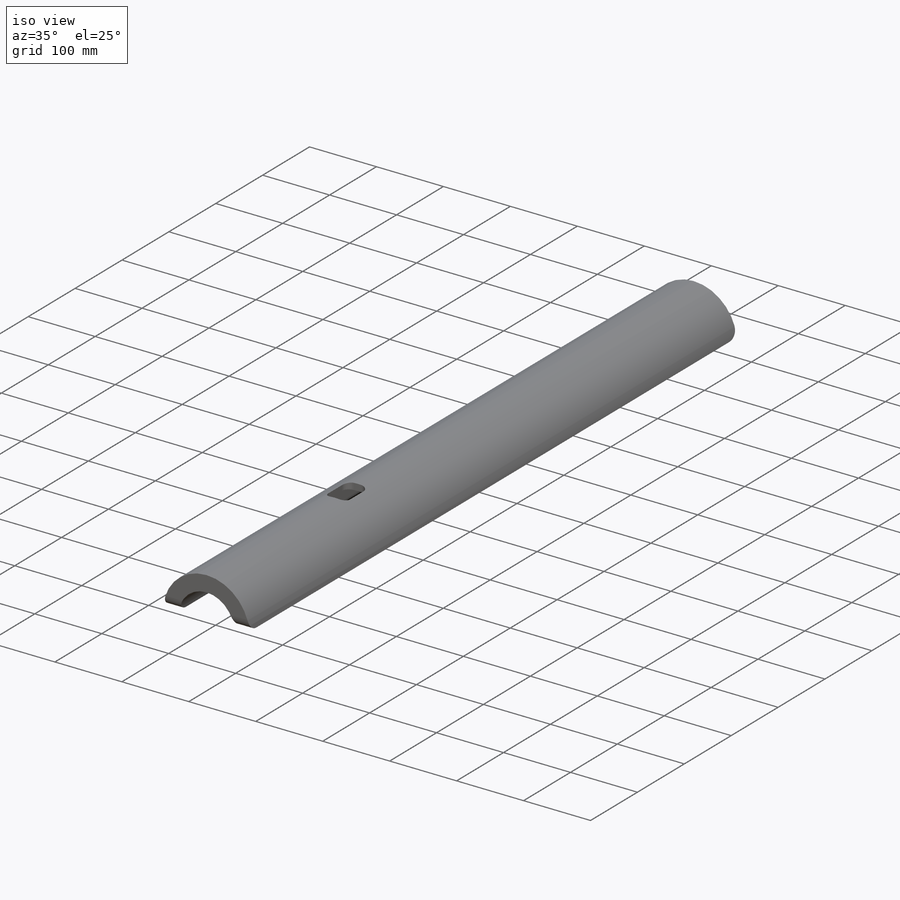
[diagram: iso view]
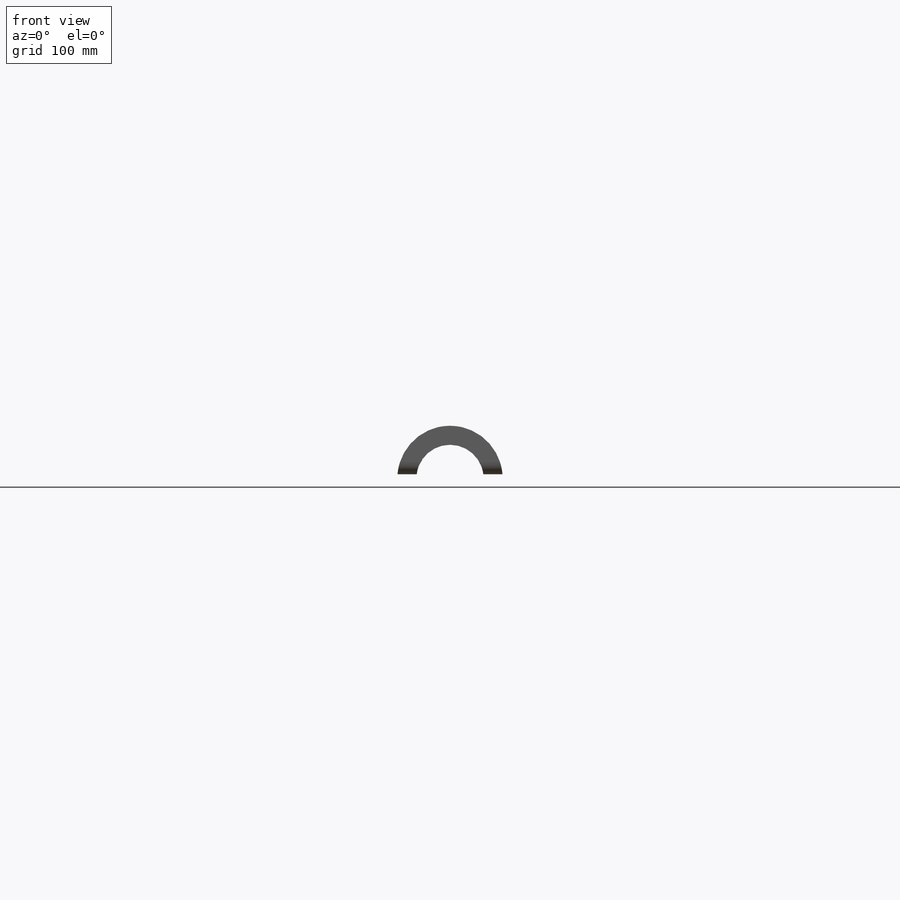
[diagram: front view]
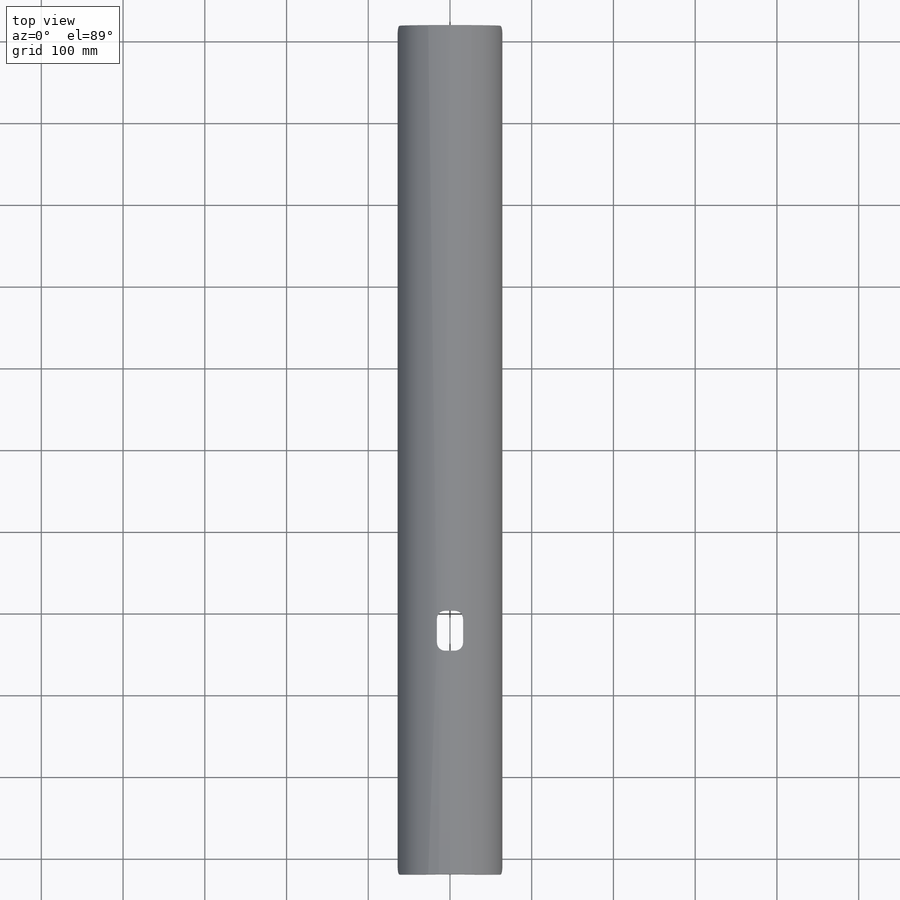
[diagram: top view]
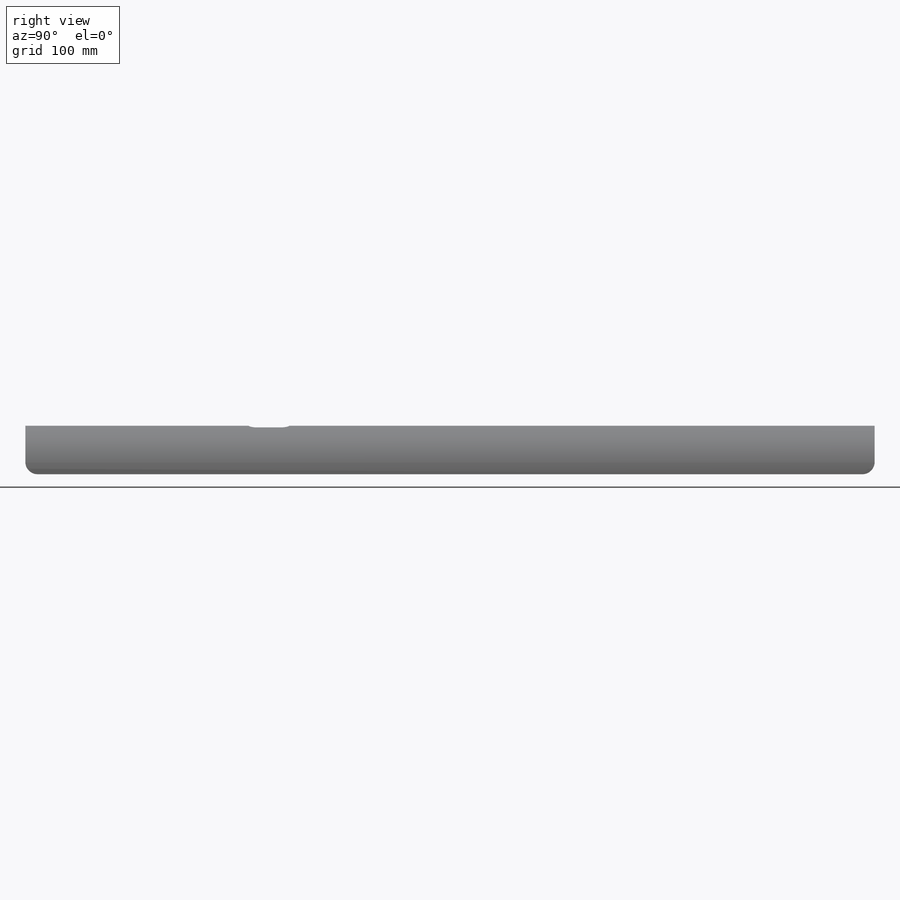
[diagram: right view]
SOLIDWORKS PART (.sldprt)
format: sldprt  version: not decoded by parser v0  size: 248,832 bytes
history: native  units: mm
features: sketch x3, fillet x2, cut_extrude x2, material x1, extrude x1, plane x1 (+13 scaffold rows collapsed)
feature tree (23):
  scaffold x13  (default folders/planes/origin — collapsed)
  material  "A-Glass Fiber"
  sketch  "Sketch1"  dims[D1=82.12mm D2=113.87mm D4=128.68mm D3=5.0mm]
  extrude  "Boss-Extrude1"  Depth=1039mm
  fillet  "Fillet1"  Radius=15mm
  plane  "Plane4"  Offset=67mm
  sketch  "Sketch2"  dims[c1.D1=221.5mm c1.D2=33.0mm c1.D3=59.0mm c2.D1=62.0mm c2.D3=264.0mm]
  cut_extrude  "Cut-Extrude1"  Depth=54.5mm
  fillet  "Fillet2"  Radius=10mm
  sketch  "Sketch3"  dims[c1.D5=10.0mm c1.D1=32.0mm c1.D2=49.0mm c1.D3=18.0mm c1.D4=48.1455mm c2.D5=49.0mm]
  cut_extrude  "Cut-Extrude2"  [1 undecoded]
decode coverage: 7 of 8 modeling features carry decoded parameters
note: 1 parameter value undecoded
note: suppression state not decoded; provenance and decode notes live in map.json
